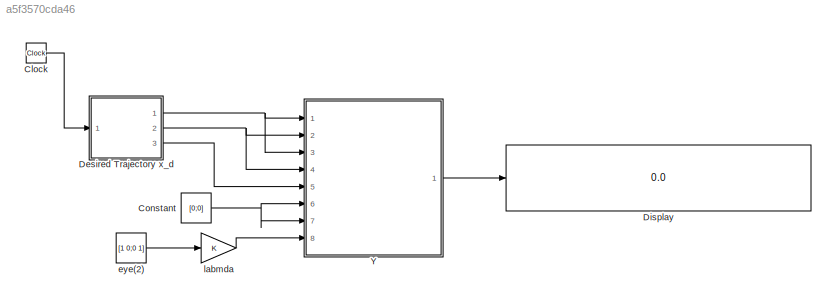
MODEL slx_a5f3570cda46
KIND model
CONFIG AbsTol = auto
CONFIG EnableMultiTasking = off
CONFIG FixedStep = auto
CONFIG MaxStep = auto
CONFIG MinStep = auto
CONFIG RelTol = 1e-3
CONFIG SampleTimeConstraint = Unconstrained
CONFIG SolverName = VariableStepAuto
CONFIG StartTime = 0.0
CONFIG StopTime = 10.0
BLOCK [Clock] Clock
BLOCK [Constant] Constant
  Value = [0;0]
  VectorParams1D = off
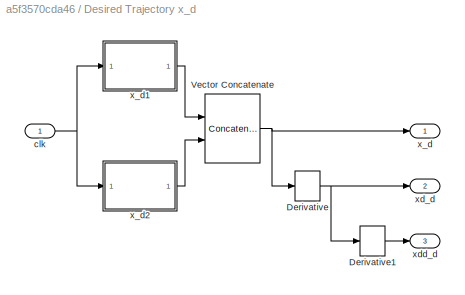
BLOCK [SubSystem] Desired Trajectory x_d
  Ports = [1, 3]
  RequestExecContextInheritance = off
BLOCK [Derivative] Desired Trajectory x_d/Derivative
BLOCK [Derivative] Desired Trajectory x_d/Derivative1
BLOCK [Concatenate] Desired Trajectory x_d/Vector Concatenate
  Ports = [2, 1]
BLOCK [Inport] Desired Trajectory x_d/clk
BLOCK [Outport] Desired Trajectory x_d/x_d
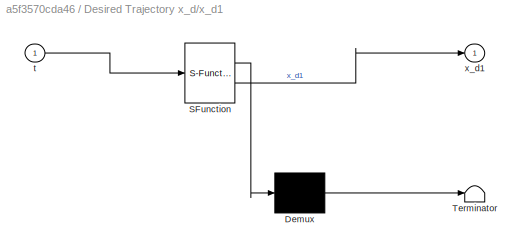
BLOCK [SubSystem] Desired Trajectory x_d/x_d1
  ErrorFcn = Stateflow.Translate.translate
  PermitHierarchicalResolution = ExplicitOnly
  Ports = [1, 1]
  RequestExecContextInheritance = off
  SFBlockType = MATLAB Function
  TreatAsAtomicUnit = on
BLOCK [Demux] Desired Trajectory x_d/x_d1/ Demux 
  Outputs = 1
  Ports = [1, 1]
BLOCK [S-Function] Desired Trajectory x_d/x_d1/ SFunction 
  EnableBusSupport = on
  FunctionName = sf_sfun
  PortCounts = [1 2]
  Ports = [1, 2]
  SFcnIsStateOwnerBlock = off
  SFunctionDeploymentMode = off
  Tag = Stateflow S-Function 2
BLOCK [Terminator] Desired Trajectory x_d/x_d1/ Terminator 
BLOCK [Inport] Desired Trajectory x_d/x_d1/t
BLOCK [Outport] Desired Trajectory x_d/x_d1/x_d1
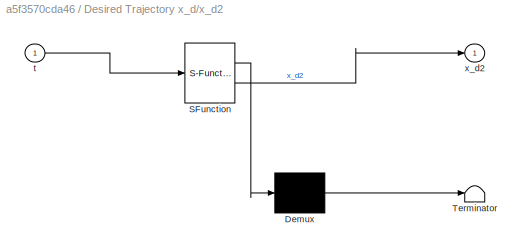
BLOCK [SubSystem] Desired Trajectory x_d/x_d2
  ErrorFcn = Stateflow.Translate.translate
  PermitHierarchicalResolution = ExplicitOnly
  Ports = [1, 1]
  RequestExecContextInheritance = off
  SFBlockType = MATLAB Function
  TreatAsAtomicUnit = on
BLOCK [Demux] Desired Trajectory x_d/x_d2/ Demux 
  Outputs = 1
  Ports = [1, 1]
BLOCK [S-Function] Desired Trajectory x_d/x_d2/ SFunction 
  EnableBusSupport = on
  FunctionName = sf_sfun
  PortCounts = [1 2]
  Ports = [1, 2]
  SFcnIsStateOwnerBlock = off
  SFunctionDeploymentMode = off
  Tag = Stateflow S-Function 1
BLOCK [Terminator] Desired Trajectory x_d/x_d2/ Terminator 
BLOCK [Inport] Desired Trajectory x_d/x_d2/t
BLOCK [Outport] Desired Trajectory x_d/x_d2/x_d2
BLOCK [Outport] Desired Trajectory x_d/xd_d
  Port = 2
BLOCK [Outport] Desired Trajectory x_d/xdd_d
  Port = 3
BLOCK [Display] Display
  Decimation = 1
  Ports = [1]
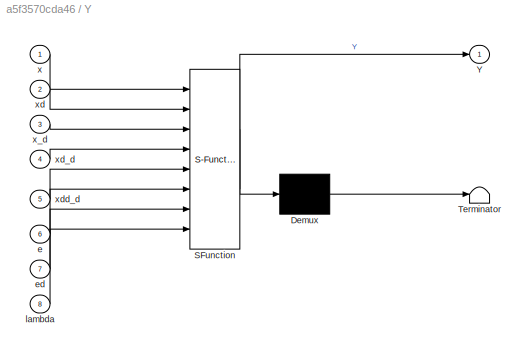
BLOCK [SubSystem] Y
  ErrorFcn = Stateflow.Translate.translate
  PermitHierarchicalResolution = ExplicitOnly
  Ports = [8, 1]
  RequestExecContextInheritance = off
  SFBlockType = MATLAB Function
  TreatAsAtomicUnit = on
BLOCK [Demux] Y/ Demux 
  Outputs = 1
  Ports = [1, 1]
BLOCK [S-Function] Y/ SFunction 
  EnableBusSupport = on
  FunctionName = sf_sfun
  PortCounts = [8 2]
  Ports = [8, 2]
  SFcnIsStateOwnerBlock = off
  SFunctionDeploymentMode = off
  Tag = Stateflow S-Function 25
BLOCK [Terminator] Y/ Terminator 
BLOCK [Outport] Y/Y
BLOCK [Inport] Y/e
  Port = 6
BLOCK [Inport] Y/ed
  Port = 7
BLOCK [Inport] Y/lambda
  Port = 8
BLOCK [Inport] Y/x
BLOCK [Inport] Y/x_d
  Port = 3
BLOCK [Inport] Y/xd
  Port = 2
BLOCK [Inport] Y/xd_d
  Port = 4
BLOCK [Inport] Y/xdd_d
  Port = 5
BLOCK [Constant] eye(2)
  Value = [1 0;0 1]
  VectorParams1D = off
BLOCK [Gain] labmda
LINE Clock:1 -> Desired Trajectory x_d:1
NET Constant:1 -> Y:6, Y:7
LINE Desired Trajectory x_d/Derivative1:1 -> Desired Trajectory x_d/xdd_d:1
NET Desired Trajectory x_d/Derivative:1 -> Desired Trajectory x_d/Derivative1:1, Desired Trajectory x_d/xd_d:1
NET Desired Trajectory x_d/Vector Concatenate:1 -> Desired Trajectory x_d/Derivative:1, Desired Trajectory x_d/x_d:1
NET Desired Trajectory x_d/clk:1 -> Desired Trajectory x_d/x_d1:1, Desired Trajectory x_d/x_d2:1
LINE Desired Trajectory x_d/x_d1:1 -> Desired Trajectory x_d/Vector Concatenate:1
LINE Desired Trajectory x_d/x_d2:1 -> Desired Trajectory x_d/Vector Concatenate:2
NET Desired Trajectory x_d:1 -> Y:1, Y:3
NET Desired Trajectory x_d:2 -> Y:2, Y:4
LINE Desired Trajectory x_d:3 -> Y:5
LINE Y:1 -> Display:1
LINE eye(2):1 -> labmda:1
LINE labmda:1 -> Y:8
note: NET lines group one-source signal fan-out (src -> all destinations, sorted); 1:1 wires keep LINE
CHART Desired Trajectory x_d/x_d2 states=1 transitions=1
  STATE_LABEL 'eML_blk_kernel()'
  STATE_LABEL 'SCRIPT:\nfunction x_d2 = fcn(t)\n\nx_d2 = pi/6 * (1 - cos(2 * pi * t) + sin(1.5 * pi * t));\n'
CHART Desired Trajectory x_d/x_d1 states=1 transitions=1
  STATE_LABEL 'eML_blk_kernel()'
  STATE_LABEL 'SCRIPT:\nfunction x_d1 = fcn(t)\n\nx_d1 = pi/6 * (1 - cos(1.5 * pi * t) + sin(pi * t));\n'
CHART Y states=1 transitions=1
  STATE_LABEL 'eML_blk_kernel()'
  STATE_LABEL 'SCRIPT:\nfunction Y = calculateY(x, xd, x_d, xd_d, xdd_d, e, ed, lambda)\nY = system_signals(x, xd, x_d, xd_d, xdd_d, e, ed, lambda);\nend'
CHART  states=0 transitions=0
CHART  states=0 transitions=0
CHART  states=0 transitions=0
